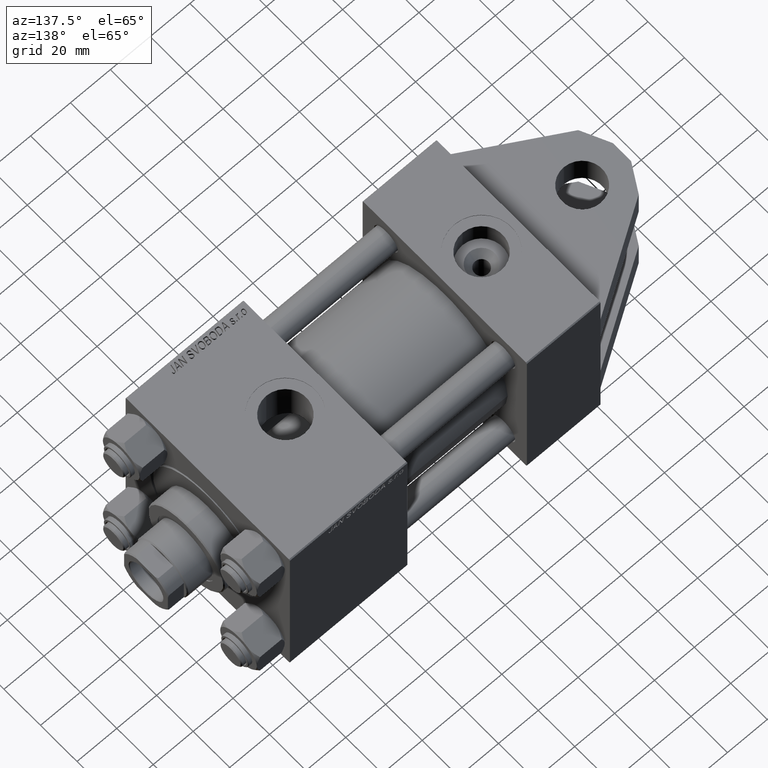
[diagram: clean part render]
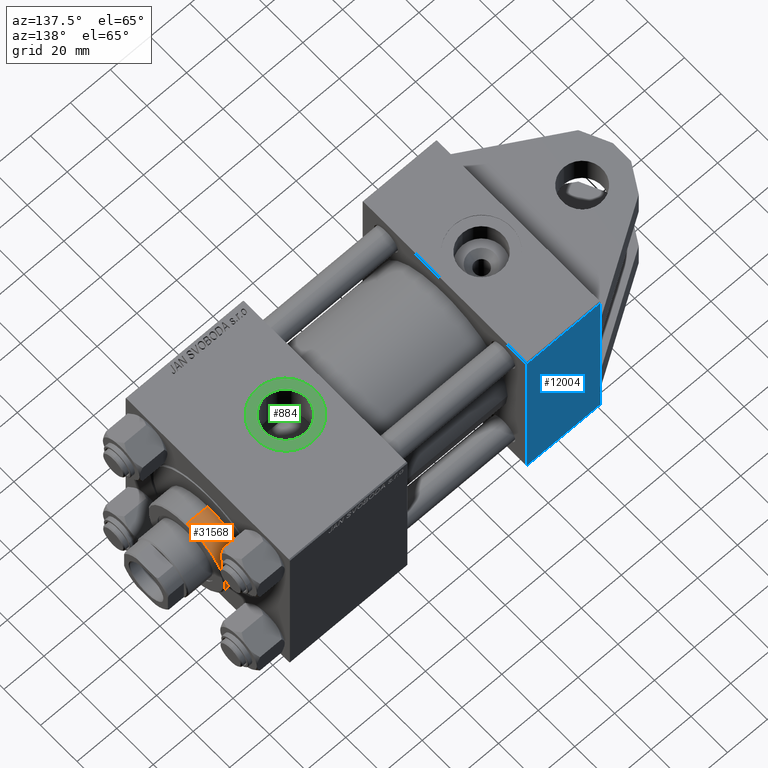
[diagram: same view with three faces highlighted in distinct colors, each labeled with its STEP entity id]
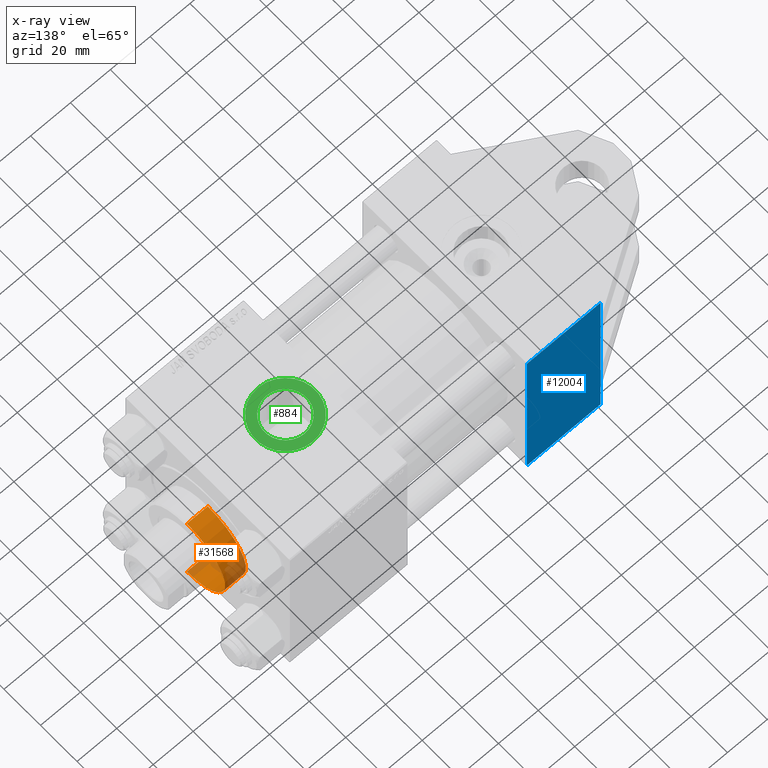
[diagram: x-ray of the same camera — body ghosted, the three highlighted faces saturated]
A machine part, auxiliary view with three faces highlighted in distinct colors.
The next image is the same camera in x-ray (body ghosted, the three faces saturated) — at least one of them is partly hidden behind the body in this view.
Their STEP definitions:

[orange] entity #31568 — the highlighted cylindrical surface (partial cylindrical patch) has radius 21 mm, axis along (-1, 0, 0).
#91 = VECTOR ( 'NONE', #13317, 1000.000000000000000 ) ;
#335 = DIRECTION ( 'NONE',  ( 1.000000000000000000, 0.000000000000000000, 0.000000000000000000 ) ) ;
#3218 = DIRECTION ( 'NONE',  ( -1.000000000000000000, 0.000000000000000000, 0.000000000000000000 ) ) ;
#4607 = DIRECTION ( 'NONE',  ( 0.000000000000000000, 0.000000000000000000, 1.000000000000000000 ) ) ;
#5099 = CARTESIAN_POINT ( 'NONE',  ( 0.000000000000000000, 0.000000000000000000, 28.69999999999999929 ) ) ;
#6105 = VECTOR ( 'NONE', #28791, 1000.000000000000000 ) ;
#9211 = ORIENTED_EDGE ( 'NONE', *, *, #25009, .T. ) ;
#9504 = CIRCLE ( 'NONE', #22335, 21.00000000000000000 ) ;
#9677 = CARTESIAN_POINT ( 'NONE',  ( -21.00000000000000000, 0.000000000000000000, 39.69999999999999574 ) ) ;
#10883 = ORIENTED_EDGE ( 'NONE', *, *, #18375, .T. ) ;
#11523 = CARTESIAN_POINT ( 'NONE',  ( 0.000000000000000000, 0.000000000000000000, 39.69999999999999574 ) ) ;
#11546 = AXIS2_PLACEMENT_3D ( 'NONE', #41854, #42355, #42106 ) ;
#12061 = VERTEX_POINT ( 'NONE', #13847 ) ;
#13317 = DIRECTION ( 'NONE',  ( -0.000000000000000000, -0.000000000000000000, -1.000000000000000000 ) ) ;
#13847 = CARTESIAN_POINT ( 'NONE',  ( 21.00000000000000000, 2.571758278209441661E-15, 28.69999999999999929 ) ) ;
#13956 = CIRCLE ( 'NONE', #11546, 21.00000000000000000 ) ;
#16328 = EDGE_LOOP ( 'NONE', ( #9211, #10883, #33861, #22784 ) ) ;
#16353 = CARTESIAN_POINT ( 'NONE',  ( 21.00000000000000000, 2.571758278209441661E-15, 39.19999999999999574 ) ) ;
#17446 = VERTEX_POINT ( 'NONE', #22125 ) ;
#18375 = EDGE_CURVE ( 'NONE', #33988, #12061, #31922, .T. ) ;
#18575 = CYLINDRICAL_SURFACE ( 'NONE', #39752, 21.00000000000000000 ) ;
#22125 = CARTESIAN_POINT ( 'NONE',  ( -21.00000000000000000, 0.000000000000000000, 28.69999999999999929 ) ) ;
#22335 = AXIS2_PLACEMENT_3D ( 'NONE', #5099, #4607, #335 ) ;
#22784 = ORIENTED_EDGE ( 'NONE', *, *, #33134, .F. ) ;
#25009 = EDGE_CURVE ( 'NONE', #46251, #33988, #13956, .T. ) ;
#28582 = CARTESIAN_POINT ( 'NONE',  ( -21.00000000000000000, 0.000000000000000000, 39.19999999999999574 ) ) ;
#28791 = DIRECTION ( 'NONE',  ( -0.000000000000000000, -0.000000000000000000, -1.000000000000000000 ) ) ;
#30626 = DIRECTION ( 'NONE',  ( -0.000000000000000000, -0.000000000000000000, -1.000000000000000000 ) ) ;
#31568 = ADVANCED_FACE ( 'NONE', ( #37674 ), #18575, .T. ) ;
#31922 = LINE ( 'NONE', #47264, #91 ) ;
#33059 = LINE ( 'NONE', #9677, #6105 ) ;
#33134 = EDGE_CURVE ( 'NONE', #46251, #17446, #33059, .T. ) ;
#33861 = ORIENTED_EDGE ( 'NONE', *, *, #39596, .T. ) ;
#33988 = VERTEX_POINT ( 'NONE', #16353 ) ;
#37674 = FACE_OUTER_BOUND ( 'NONE', #16328, .T. ) ;
#39596 = EDGE_CURVE ( 'NONE', #12061, #17446, #9504, .T. ) ;
#39752 = AXIS2_PLACEMENT_3D ( 'NONE', #11523, #30626, #3218 ) ;
#41854 = CARTESIAN_POINT ( 'NONE',  ( 0.000000000000000000, 0.000000000000000000, 39.19999999999999574 ) ) ;
#42106 = DIRECTION ( 'NONE',  ( 1.000000000000000000, 0.000000000000000000, 0.000000000000000000 ) ) ;
#42355 = DIRECTION ( 'NONE',  ( 0.000000000000000000, 0.000000000000000000, -1.000000000000000000 ) ) ;
#46251 = VERTEX_POINT ( 'NONE', #28582 ) ;
#47264 = CARTESIAN_POINT ( 'NONE',  ( 21.00000000000000000, 2.571758278209441661E-15, 39.69999999999999574 ) ) ;

[blue] entity #12004 — the highlighted planar face has unit normal (0, -1, -0).
#246 = EDGE_CURVE ( 'NONE', #40930, #32048, #1003, .T. ) ;
#1003 = LINE ( 'NONE', #32429, #41881 ) ;
#1418 = VECTOR ( 'NONE', #7435, 1000.000000000000000 ) ;
#3405 = LINE ( 'NONE', #38354, #1418 ) ;
#5723 = VERTEX_POINT ( 'NONE', #39666 ) ;
#6750 = CARTESIAN_POINT ( 'NONE',  ( 37.00000000000000000, -44.49999999999998579, 45.00000000000000000 ) ) ;
#7190 = DIRECTION ( 'NONE',  ( 0.000000000000000000, -1.000000000000000000, -1.541976423090495387E-16 ) ) ;
#7435 = DIRECTION ( 'NONE',  ( 0.000000000000000000, -1.000000000000000000, -1.541976423090495387E-16 ) ) ;
#8305 = EDGE_CURVE ( 'NONE', #48314, #22031, #22413, .T. ) ;
#8736 = CARTESIAN_POINT ( 'NONE',  ( 0.000000000000000000, 30.00000000000000355, 45.00000000000001421 ) ) ;
#9073 = LINE ( 'NONE', #24404, #42195 ) ;
#9623 = CARTESIAN_POINT ( 'NONE',  ( 0.000000000000000000, 44.49999999999998579, 45.00000000000001421 ) ) ;
#9786 = LINE ( 'NONE', #6750, #49065 ) ;
#10118 = CARTESIAN_POINT ( 'NONE',  ( 37.00000000000000000, 44.99999999999998579, 45.00000000000001421 ) ) ;
#10298 = DIRECTION ( 'NONE',  ( 0.000000000000000000, 1.000000000000000000, 1.541976423090495633E-16 ) ) ;
#10632 = ORIENTED_EDGE ( 'NONE', *, *, #29919, .T. ) ;
#12004 = ADVANCED_FACE ( 'NONE', ( #44756 ), #44517, .F. ) ;
#13111 = ORIENTED_EDGE ( 'NONE', *, *, #40565, .T. ) ;
#13593 = DIRECTION ( 'NONE',  ( 0.000000000000000000, 1.541976423090495633E-16, -1.000000000000000000 ) ) ;
#16441 = EDGE_CURVE ( 'NONE', #40930, #5723, #33602, .T. ) ;
#16895 = ORIENTED_EDGE ( 'NONE', *, *, #246, .F. ) ;
#18332 = ORIENTED_EDGE ( 'NONE', *, *, #8305, .F. ) ;
#18579 = EDGE_CURVE ( 'NONE', #5723, #22031, #9786, .T. ) ;
#18786 = LINE ( 'NONE', #34121, #28020 ) ;
#19175 = ORIENTED_EDGE ( 'NONE', *, *, #36603, .T. ) ;
#21587 = DIRECTION ( 'NONE',  ( 1.000000000000000000, 0.000000000000000000, 0.000000000000000000 ) ) ;
#21959 = EDGE_LOOP ( 'NONE', ( #25738, #10632, #19175, #16895, #38686, #38011, #18332, #13111 ) ) ;
#22031 = VERTEX_POINT ( 'NONE', #34868 ) ;
#22269 = CARTESIAN_POINT ( 'NONE',  ( 0.000000000000000000, 44.99999999999998579, 45.00000000000001421 ) ) ;
#22413 = LINE ( 'NONE', #10118, #34417 ) ;
#22696 = CARTESIAN_POINT ( 'NONE',  ( 37.00000000000000000, 44.49999999999998579, 45.00000000000001421 ) ) ;
#23029 = LINE ( 'NONE', #26809, #42489 ) ;
#24404 = CARTESIAN_POINT ( 'NONE',  ( 0.000000000000000000, 30.00000000000000000, 45.00000000000000000 ) ) ;
#24875 = AXIS2_PLACEMENT_3D ( 'NONE', #48041, #13593, #10298 ) ;
#25738 = ORIENTED_EDGE ( 'NONE', *, *, #41375, .T. ) ;
#26189 = DIRECTION ( 'NONE',  ( 0.000000000000000000, -1.000000000000000000, -1.541976423090495387E-16 ) ) ;
#26809 = CARTESIAN_POINT ( 'NONE',  ( 0.000000000000000000, 44.49999999999998579, 45.00000000000001421 ) ) ;
#28020 = VECTOR ( 'NONE', #29845, 1000.000000000000000 ) ;
#28973 = VERTEX_POINT ( 'NONE', #9623 ) ;
#29845 = DIRECTION ( 'NONE',  ( 0.000000000000000000, -1.000000000000000000, -1.541976423090495387E-16 ) ) ;
#29919 = EDGE_CURVE ( 'NONE', #34365, #49242, #9073, .T. ) ;
#31474 = DIRECTION ( 'NONE',  ( -0.000000000000000000, -1.000000000000000000, -0.000000000000000000 ) ) ;
#32048 = VERTEX_POINT ( 'NONE', #46165 ) ;
#32429 = CARTESIAN_POINT ( 'NONE',  ( 0.000000000000000000, -30.00000000000000000, 45.00000000000000000 ) ) ;
#33602 = LINE ( 'NONE', #22269, #45910 ) ;
#34121 = CARTESIAN_POINT ( 'NONE',  ( 0.000000000000000000, 44.99999999999998579, 45.00000000000001421 ) ) ;
#34365 = VERTEX_POINT ( 'NONE', #8736 ) ;
#34417 = VECTOR ( 'NONE', #26189, 1000.000000000000000 ) ;
#34868 = CARTESIAN_POINT ( 'NONE',  ( 37.00000000000000000, -44.49999999999995737, 45.00000000000000000 ) ) ;
#36603 = EDGE_CURVE ( 'NONE', #49242, #32048, #3405, .T. ) ;
#38011 = ORIENTED_EDGE ( 'NONE', *, *, #18579, .T. ) ;
#38354 = CARTESIAN_POINT ( 'NONE',  ( 0.000000000000000000, 44.99999999999998579, 45.00000000000001421 ) ) ;
#38686 = ORIENTED_EDGE ( 'NONE', *, *, #16441, .T. ) ;
#39666 = CARTESIAN_POINT ( 'NONE',  ( 0.000000000000000000, -44.49999999999995737, 45.00000000000000000 ) ) ;
#40565 = EDGE_CURVE ( 'NONE', #48314, #28973, #23029, .T. ) ;
#40930 = VERTEX_POINT ( 'NONE', #45500 ) ;
#41375 = EDGE_CURVE ( 'NONE', #28973, #34365, #18786, .T. ) ;
#41881 = VECTOR ( 'NONE', #43253, 1000.000000000000000 ) ;
#42154 = DIRECTION ( 'NONE',  ( -1.000000000000000000, 0.000000000000000000, 0.000000000000000000 ) ) ;
#42195 = VECTOR ( 'NONE', #31474, 1000.000000000000000 ) ;
#42489 = VECTOR ( 'NONE', #42154, 1000.000000000000000 ) ;
#43253 = DIRECTION ( 'NONE',  ( -0.000000000000000000, 1.000000000000000000, -0.000000000000000000 ) ) ;
#44191 = CARTESIAN_POINT ( 'NONE',  ( 0.000000000000000000, 15.00000000000000711, 45.00000000000000711 ) ) ;
#44517 = PLANE ( 'NONE',  #24875 ) ;
#44756 = FACE_OUTER_BOUND ( 'NONE', #21959, .T. ) ;
#45500 = CARTESIAN_POINT ( 'NONE',  ( 0.000000000000000000, -29.99999999999997158, 45.00000000000000000 ) ) ;
#45910 = VECTOR ( 'NONE', #7190, 1000.000000000000000 ) ;
#46165 = CARTESIAN_POINT ( 'NONE',  ( 0.000000000000000000, -15.00000000000000000, 45.00000000000000000 ) ) ;
#48041 = CARTESIAN_POINT ( 'NONE',  ( 37.00000000000000000, 44.99999999999998579, 45.00000000000001421 ) ) ;
#48314 = VERTEX_POINT ( 'NONE', #22696 ) ;
#49065 = VECTOR ( 'NONE', #21587, 1000.000000000000000 ) ;
#49242 = VERTEX_POINT ( 'NONE', #44191 ) ;

[green] entity #884 — the highlighted planar face has unit normal (0, -0, 1).
#637 = CARTESIAN_POINT ( 'NONE',  ( 117.0000000000000000, -44.79999999999999716, -3.452099717193846907E-15 ) ) ;
#884 = ADVANCED_FACE ( 'NONE', ( #6933, #45165 ), #7181, .T. ) ;
#2284 = EDGE_CURVE ( 'NONE', #11984, #34165, #30847, .T. ) ;
#2563 = DIRECTION ( 'NONE',  ( 0.000000000000000000, -1.000000000000000000, -8.673617379884036705E-17 ) ) ;
#3402 = DIRECTION ( 'NONE',  ( 0.000000000000000000, 8.673617379884036705E-17, -1.000000000000000000 ) ) ;
#3979 = ORIENTED_EDGE ( 'NONE', *, *, #5945, .F. ) ;
#5945 = EDGE_CURVE ( 'NONE', #34165, #11984, #35962, .T. ) ;
#6933 = FACE_BOUND ( 'NONE', #42289, .T. ) ;
#7128 = DIRECTION ( 'NONE',  ( 0.000000000000000000, 0.000000000000000000, -1.000000000000000000 ) ) ;
#7181 = PLANE ( 'NONE',  #9011 ) ;
#7431 = DIRECTION ( 'NONE',  ( 0.000000000000000000, -1.000000000000000000, -8.673617379884036705E-17 ) ) ;
#7674 = CARTESIAN_POINT ( 'NONE',  ( 117.0000000000000000, -44.79999999999999716, -3.452099717193846907E-15 ) ) ;
#9011 = AXIS2_PLACEMENT_3D ( 'NONE', #7674, #7431, #3402 ) ;
#10650 = DIRECTION ( 'NONE',  ( 0.000000000000000000, -1.000000000000000000, -8.673617379884036705E-17 ) ) ;
#11873 = VERTEX_POINT ( 'NONE', #43518 ) ;
#11984 = VERTEX_POINT ( 'NONE', #37212 ) ;
#12239 = CIRCLE ( 'NONE', #13073, 15.00000000000001243 ) ;
#13073 = AXIS2_PLACEMENT_3D ( 'NONE', #13869, #29195, #39520 ) ;
#13869 = CARTESIAN_POINT ( 'NONE',  ( 117.0000000000000000, -44.79999999999999716, -3.452099717193846907E-15 ) ) ;
#15600 = AXIS2_PLACEMENT_3D ( 'NONE', #34280, #10650, #7128 ) ;
#15860 = AXIS2_PLACEMENT_3D ( 'NONE', #20929, #2563, #25446 ) ;
#15981 = DIRECTION ( 'NONE',  ( 0.000000000000000000, 0.000000000000000000, -1.000000000000000000 ) ) ;
#20662 = AXIS2_PLACEMENT_3D ( 'NONE', #637, #30815, #15981 ) ;
#20907 = ORIENTED_EDGE ( 'NONE', *, *, #2284, .F. ) ;
#20929 = CARTESIAN_POINT ( 'NONE',  ( 117.0000000000000000, -44.79999999999999716, -3.452099717193846907E-15 ) ) ;
#21642 = EDGE_CURVE ( 'NONE', #27735, #11873, #12239, .T. ) ;
#25446 = DIRECTION ( 'NONE',  ( 0.000000000000000000, 0.000000000000000000, -1.000000000000000000 ) ) ;
#25614 = CARTESIAN_POINT ( 'NONE',  ( 117.0000000000000000, -44.79999999999999716, -10.48000000000000398 ) ) ;
#26794 = ORIENTED_EDGE ( 'NONE', *, *, #37685, .T. ) ;
#27735 = VERTEX_POINT ( 'NONE', #29756 ) ;
#29195 = DIRECTION ( 'NONE',  ( 0.000000000000000000, -1.000000000000000000, -8.673617379884036705E-17 ) ) ;
#29756 = CARTESIAN_POINT ( 'NONE',  ( 117.0000000000000000, -44.79999999999999716, 15.00000000000000888 ) ) ;
#30305 = CIRCLE ( 'NONE', #15860, 15.00000000000001243 ) ;
#30815 = DIRECTION ( 'NONE',  ( 0.000000000000000000, -1.000000000000000000, -8.673617379884036705E-17 ) ) ;
#30847 = CIRCLE ( 'NONE', #15600, 10.48000000000000043 ) ;
#34165 = VERTEX_POINT ( 'NONE', #25614 ) ;
#34280 = CARTESIAN_POINT ( 'NONE',  ( 117.0000000000000000, -44.79999999999999716, -3.452099717193846907E-15 ) ) ;
#35962 = CIRCLE ( 'NONE', #20662, 10.48000000000000043 ) ;
#37212 = CARTESIAN_POINT ( 'NONE',  ( 117.0000000000000000, -44.79999999999999716, 10.47999999999999687 ) ) ;
#37225 = ORIENTED_EDGE ( 'NONE', *, *, #21642, .T. ) ;
#37685 = EDGE_CURVE ( 'NONE', #11873, #27735, #30305, .T. ) ;
#39520 = DIRECTION ( 'NONE',  ( 0.000000000000000000, 0.000000000000000000, -1.000000000000000000 ) ) ;
#39812 = EDGE_LOOP ( 'NONE', ( #26794, #37225 ) ) ;
#42289 = EDGE_LOOP ( 'NONE', ( #3979, #20907 ) ) ;
#43518 = CARTESIAN_POINT ( 'NONE',  ( 117.0000000000000000, -44.79999999999999716, -15.00000000000001421 ) ) ;
#45165 = FACE_OUTER_BOUND ( 'NONE', #39812, .T. ) ;